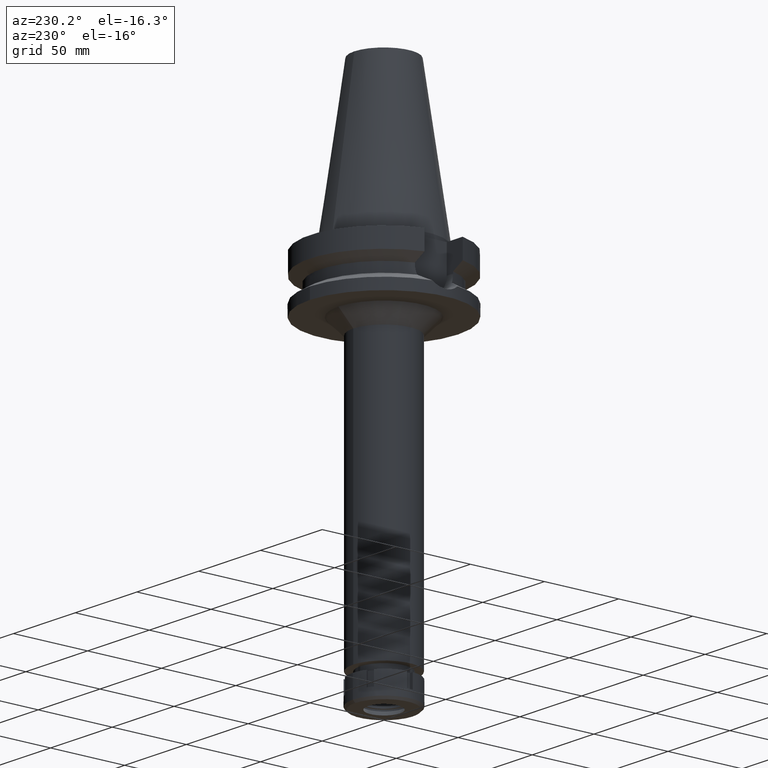
[diagram: clean part render]
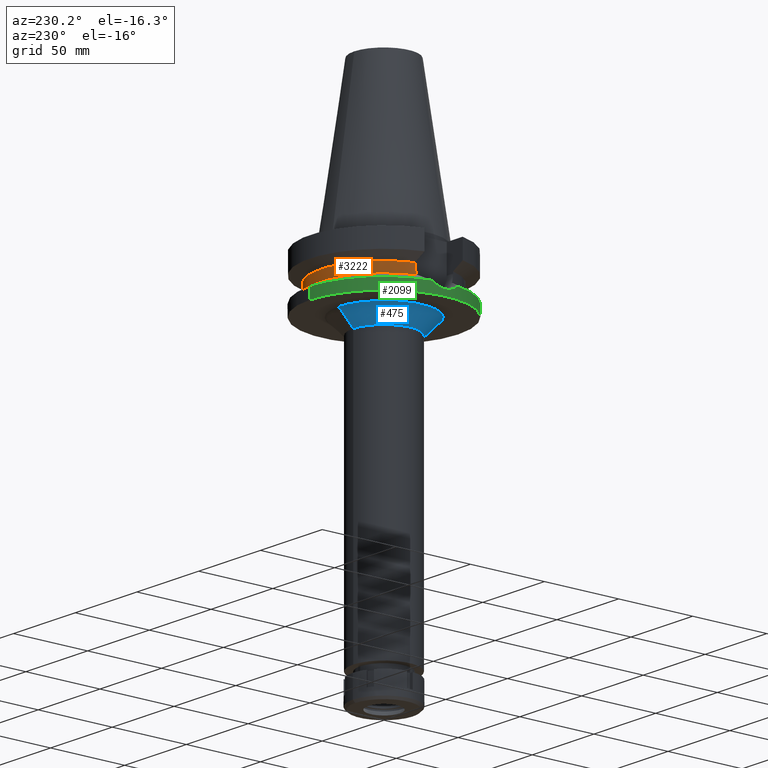
[diagram: same view with three faces highlighted in distinct colors, each labeled with its STEP entity id]
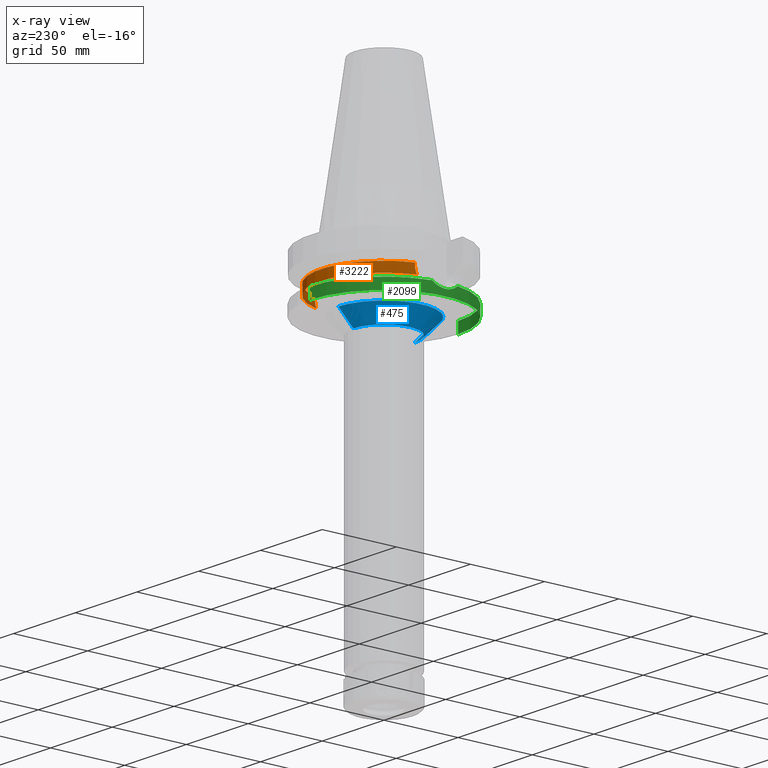
[diagram: x-ray of the same camera — body ghosted, the three highlighted faces saturated]
A machine part, auxiliary view with three faces highlighted in distinct colors.
The next image is the same camera in x-ray (body ghosted, the three faces saturated) — at least one of them is partly hidden behind the body in this view.
Their STEP definitions:

[orange] entity #3222 — the highlighted cylindrical surface (partial cylindrical patch) has radius 42.5 mm, axis along (0, 0, -1).
#44 = CARTESIAN_POINT ( 'NONE',  ( -40.51083297141000372, 12.84999657442999954, -19.99284554354000321 ) ) ;
#49 = CARTESIAN_POINT ( 'NONE',  ( 40.85052569294000335, 11.72538061688000077, -26.40718074535000426 ) ) ;
#210 = CARTESIAN_POINT ( 'NONE',  ( 0.0000000000000000000, 2.681854025452999794E-14, 118.9899999999999949 ) ) ;
#244 = VERTEX_POINT ( 'NONE', #857 ) ;
#247 = DIRECTION ( 'NONE',  ( 0.0000000000000000000, 0.0000000000000000000, -1.000000000000000000 ) ) ;
#391 = DIRECTION ( 'NONE',  ( 9.395523002366738675E-07, -2.962029390682913821E-06, 0.9999999999951717511 ) ) ;
#401 = AXIS2_PLACEMENT_3D ( 'NONE', #2736, #247, #1637 ) ;
#406 = DIRECTION ( 'NONE',  ( 0.0000000000000000000, 0.0000000000000000000, 1.000000000000000000 ) ) ;
#464 = CARTESIAN_POINT ( 'NONE',  ( -40.51083188481999997, 12.85000000000001563, -21.59153398603465845 ) ) ;
#481 = CARTESIAN_POINT ( 'NONE',  ( -40.51083188481999997, 12.84999999999999964, -21.14999999999999858 ) ) ;
#515 = B_SPLINE_CURVE_WITH_KNOTS ( 'NONE', 3,
 ( #49, #1431, #1175, #1397, #1412, #912, #2529, #1156, #878, #1989, #3084, #2290, #1721, #1670 ),
 .UNSPECIFIED., .F., .F.,
 ( 4, 2, 2, 1, 1, 2, 2, 4 ),
 ( 0.0000000000000000000, 0.2500000000000088818, 0.3750000000000124345, 0.4375000000000142109, 0.4687500000000148215, 0.4843750000000149880, 0.5000000000000150990, 1.000000000000000000 ),
 .UNSPECIFIED. ) ;
#531 = CARTESIAN_POINT ( 'NONE',  ( -40.54025132290458799, 12.75732218803889317, -22.70680588306217729 ) ) ;
#539 = EDGE_CURVE ( 'NONE', #2437, #3578, #2130, .T. ) ;
#611 = VERTEX_POINT ( 'NONE', #3116 ) ;
#681 = VECTOR ( 'NONE', #391, 1000.000000000000227 ) ;
#698 = VERTEX_POINT ( 'NONE', #1628 ) ;
#699 = CARTESIAN_POINT ( 'NONE',  ( 40.51083297203000200, 12.84999657246999938, -19.99284555851999912 ) ) ;
#729 = EDGE_LOOP ( 'NONE', ( #1029, #2800, #1897, #1011, #2667, #2448 ) ) ;
#857 = CARTESIAN_POINT ( 'NONE',  ( -40.51083188481999997, 12.84999999999999964, -21.14999999999999858 ) ) ;
#878 = CARTESIAN_POINT ( 'NONE',  ( 40.60613110225496314, 12.54580251688820702, -23.92957962290375917 ) ) ;
#912 = CARTESIAN_POINT ( 'NONE',  ( 40.63719350381693118, 12.44501290232970803, -24.35254947176870388 ) ) ;
#952 = DIRECTION ( 'NONE',  ( 0.0000000000000000000, 1.000000000000000000, 0.0000000000000000000 ) ) ;
#1011 = ORIENTED_EDGE ( 'NONE', *, *, #1415, .F. ) ;
#1029 = ORIENTED_EDGE ( 'NONE', *, *, #1809, .F. ) ;
#1042 = CARTESIAN_POINT ( 'NONE',  ( -40.73816461281640500, 12.11683990849684811, -25.53408746350429226 ) ) ;
#1061 = CARTESIAN_POINT ( 'NONE',  ( -40.51818674434115763, 12.82722305126782913, -22.03685098009094290 ) ) ;
#1076 = CARTESIAN_POINT ( 'NONE',  ( -40.58662141379181776, 12.60879353507807643, -23.62921445736077075 ) ) ;
#1156 = CARTESIAN_POINT ( 'NONE',  ( 40.61156326417292206, 12.52823195063890438, -24.00849632308295867 ) ) ;
#1175 = CARTESIAN_POINT ( 'NONE',  ( 40.74530106207418356, 12.08735929793825115, -25.53452262250650762 ) ) ;
#1314 = CARTESIAN_POINT ( 'NONE',  ( -40.57495706627000231, 12.64634743214176460, -23.43364309116476463 ) ) ;
#1397 = CARTESIAN_POINT ( 'NONE',  ( 40.68244048076137886, 12.29668230719066280, -24.88705132319661217 ) ) ;
#1412 = CARTESIAN_POINT ( 'NONE',  ( 40.66327116386116103, 12.35978815021476862, -24.67233075035922951 ) ) ;
#1415 = EDGE_CURVE ( 'NONE', #2437, #698, #515, .T. ) ;
#1431 = CARTESIAN_POINT ( 'NONE',  ( 40.79434495709897845, 11.92111094478741684, -25.97063258310483747 ) ) ;
#1440 = AXIS2_PLACEMENT_3D ( 'NONE', #1466, #406, #952 ) ;
#1466 = CARTESIAN_POINT ( 'NONE',  ( 0.0000000000000000000, 0.0000000000000000000, -26.40718074535000426 ) ) ;
#1474 = CARTESIAN_POINT ( 'NONE',  ( -40.85052569294000335, 11.72538061688000077, -26.40718074535000426 ) ) ;
#1528 = EDGE_CURVE ( 'NONE', #698, #3271, #2366, .T. ) ;
#1628 = CARTESIAN_POINT ( 'NONE',  ( 40.51083188481999997, 12.84999999999999964, -21.14999999999999858 ) ) ;
#1637 = DIRECTION ( 'NONE',  ( -0.9531960443486575674, 0.3023529411764863672, 0.0000000000000000000 ) ) ;
#1648 = CARTESIAN_POINT ( 'NONE',  ( -40.85052569294000335, 11.72538061688000077, -26.40718074535000426 ) ) ;
#1670 = CARTESIAN_POINT ( 'NONE',  ( 40.51083188481999997, 12.84999999999999964, -21.14999999999999858 ) ) ;
#1721 = CARTESIAN_POINT ( 'NONE',  ( 40.51083188482000708, 12.84999999999999964, -22.03306357542801308 ) ) ;
#1723 = EDGE_CURVE ( 'NONE', #244, #3578, #1857, .T. ) ;
#1809 = EDGE_CURVE ( 'NONE', #611, #244, #2544, .T. ) ;
#1829 = FACE_OUTER_BOUND ( 'NONE', #729, .T. ) ;
#1857 = B_SPLINE_CURVE_WITH_KNOTS ( 'NONE', 3,
 ( #481, #464, #1061, #531, #3551, #2169, #1314, #1076, #2417, #2727, #3212, #3518, #1042, #1648 ),
 .UNSPECIFIED., .F., .F.,
 ( 4, 2, 2, 1, 1, 2, 2, 4 ),
 ( 0.0000000000000000000, 0.2499999999999834022, 0.3749999999999751310, 0.4374999999999700795, 0.4687499999999685252, 0.4843749999999687472, 0.4999999999999689138, 1.000000000000000000 ),
 .UNSPECIFIED. ) ;
#1897 = ORIENTED_EDGE ( 'NONE', *, *, #1528, .F. ) ;
#1989 = CARTESIAN_POINT ( 'NONE',  ( 40.60256541754520043, 12.55733046574997580, -23.87702681445704656 ) ) ;
#2101 = CARTESIAN_POINT ( 'NONE',  ( 40.51083188481999997, 12.84999999999999964, -21.14999999999999858 ) ) ;
#2130 = CIRCLE ( 'NONE', #1440, 42.50000000000000000 ) ;
#2154 = DIRECTION ( 'NONE',  ( 0.0000000000000000000, 0.0000000000000000000, -1.000000000000000000 ) ) ;
#2169 = CARTESIAN_POINT ( 'NONE',  ( -40.56599333122861140, 12.67510265658731150, -23.26591310791587830 ) ) ;
#2253 = DIRECTION ( 'NONE',  ( 9.390170942255792672E-07, 2.960342106127936188E-06, -0.9999999999951774132 ) ) ;
#2290 = CARTESIAN_POINT ( 'NONE',  ( 40.54024904577624966, 12.75863252666559511, -22.93145020863451577 ) ) ;
#2366 = LINE ( 'NONE', #2101, #681 ) ;
#2417 = CARTESIAN_POINT ( 'NONE',  ( -40.59187898915261883, 12.59183755229984136, -23.71299428912182705 ) ) ;
#2437 = VERTEX_POINT ( 'NONE', #3185 ) ;
#2448 = ORIENTED_EDGE ( 'NONE', *, *, #1723, .F. ) ;
#2529 = CARTESIAN_POINT ( 'NONE',  ( 40.62482375262136003, 12.48526717845384759, -24.19323260104153661 ) ) ;
#2541 = VECTOR ( 'NONE', #2253, 999.9999999999998863 ) ;
#2544 = LINE ( 'NONE', #44, #2541 ) ;
#2554 = AXIS2_PLACEMENT_3D ( 'NONE', #210, #2154, #3490 ) ;
#2662 = CYLINDRICAL_SURFACE ( 'NONE', #2554, 42.50000000000000000 ) ;
#2667 = ORIENTED_EDGE ( 'NONE', *, *, #539, .T. ) ;
#2727 = CARTESIAN_POINT ( 'NONE',  ( -40.59544149923318201, 12.58034180439843830, -23.76883805419211271 ) ) ;
#2736 = CARTESIAN_POINT ( 'NONE',  ( 0.0000000000000000000, 1.006319759053999930E-14, -19.99281925464999787 ) ) ;
#2792 = EDGE_CURVE ( 'NONE', #611, #3271, #3234, .T. ) ;
#2800 = ORIENTED_EDGE ( 'NONE', *, *, #2792, .T. ) ;
#3084 = CARTESIAN_POINT ( 'NONE',  ( 40.60092194024851153, 12.56264142401920658, -23.85247195708983270 ) ) ;
#3116 = CARTESIAN_POINT ( 'NONE',  ( -40.51083188481999997, 12.84999999999999964, -19.99281925464999787 ) ) ;
#3185 = CARTESIAN_POINT ( 'NONE',  ( 40.85052569294000335, 11.72538061688000077, -26.40718074535000426 ) ) ;
#3212 = CARTESIAN_POINT ( 'NONE',  ( -40.59736324337207236, 12.57413702265193045, -23.79845171695418671 ) ) ;
#3222 = ADVANCED_FACE ( 'NONE', ( #1829 ), #2662, .T. ) ;
#3234 = CIRCLE ( 'NONE', #401, 42.50000000000002132 ) ;
#3271 = VERTEX_POINT ( 'NONE', #699 ) ;
#3490 = DIRECTION ( 'NONE',  ( 0.0000000000000000000, -1.000000000000000000, 0.0000000000000000000 ) ) ;
#3518 = CARTESIAN_POINT ( 'NONE',  ( -40.65435278152766330, 12.39003776474287655, -24.66355465682169168 ) ) ;
#3551 = CARTESIAN_POINT ( 'NONE',  ( -40.54944489730601731, 12.72806972027243688, -22.93045043092751456 ) ) ;
#3578 = VERTEX_POINT ( 'NONE', #1474 ) ;

[blue] entity #475 — the highlighted conical surface has half-angle 45 deg.
#390 = CIRCLE ( 'NONE', #2813, 30.75000000000000000 ) ;
#434 = CARTESIAN_POINT ( 'NONE',  ( 0.0000000000000000000, -30.75000000000000000, -38.00000000000000000 ) ) ;
#467 = ORIENTED_EDGE ( 'NONE', *, *, #3451, .T. ) ;
#475 = ADVANCED_FACE ( 'NONE', ( #3318 ), #3241, .T. ) ;
#490 = DIRECTION ( 'NONE',  ( 0.0000000000000000000, -1.000000000000000000, 0.0000000000000000000 ) ) ;
#735 = CARTESIAN_POINT ( 'NONE',  ( 0.0000000000000000000, 20.75000000000000000, -48.00000000000000000 ) ) ;
#743 = CARTESIAN_POINT ( 'NONE',  ( 0.0000000000000000000, 30.75000000000000000, -38.00000000000000000 ) ) ;
#753 = CARTESIAN_POINT ( 'NONE',  ( 0.0000000000000000000, 0.0000000000000000000, -48.00000000000000000 ) ) ;
#853 = DIRECTION ( 'NONE',  ( 0.0000000000000000000, 0.0000000000000000000, 1.000000000000000000 ) ) ;
#929 = CARTESIAN_POINT ( 'NONE',  ( 0.0000000000000000000, -30.75000000000000000, -38.00000000000000000 ) ) ;
#962 = EDGE_CURVE ( 'NONE', #2084, #1680, #390, .T. ) ;
#976 = CARTESIAN_POINT ( 'NONE',  ( 0.0000000000000000000, 0.0000000000000000000, -38.00000000000000000 ) ) ;
#1252 = VERTEX_POINT ( 'NONE', #735 ) ;
#1344 = DIRECTION ( 'NONE',  ( 0.0000000000000000000, 0.0000000000000000000, -1.000000000000000000 ) ) ;
#1396 = AXIS2_PLACEMENT_3D ( 'NONE', #3044, #853, #1965 ) ;
#1562 = DIRECTION ( 'NONE',  ( 0.0000000000000000000, 0.7071067811865969777, -0.7071067811864980568 ) ) ;
#1638 = DIRECTION ( 'NONE',  ( 0.0000000000000000000, -0.7071067811865474617, -0.7071067811865474617 ) ) ;
#1680 = VERTEX_POINT ( 'NONE', #743 ) ;
#1965 = DIRECTION ( 'NONE',  ( 0.0000000000000000000, 1.000000000000000000, 0.0000000000000000000 ) ) ;
#1993 = LINE ( 'NONE', #2211, #2847 ) ;
#2084 = VERTEX_POINT ( 'NONE', #929 ) ;
#2211 = CARTESIAN_POINT ( 'NONE',  ( 0.0000000000000000000, 30.75000000000000000, -38.00000000000000000 ) ) ;
#2323 = VECTOR ( 'NONE', #1562, 1000.000000000000000 ) ;
#2373 = DIRECTION ( 'NONE',  ( 0.0000000000000000000, -1.000000000000000000, 0.0000000000000000000 ) ) ;
#2476 = EDGE_LOOP ( 'NONE', ( #3186, #2484, #3571, #467 ) ) ;
#2482 = CIRCLE ( 'NONE', #2719, 20.75000000000000000 ) ;
#2484 = ORIENTED_EDGE ( 'NONE', *, *, #3285, .F. ) ;
#2691 = EDGE_CURVE ( 'NONE', #3325, #1252, #2482, .T. ) ;
#2719 = AXIS2_PLACEMENT_3D ( 'NONE', #753, #1344, #490 ) ;
#2813 = AXIS2_PLACEMENT_3D ( 'NONE', #976, #3493, #2373 ) ;
#2847 = VECTOR ( 'NONE', #1638, 1000.000000000000114 ) ;
#2911 = LINE ( 'NONE', #434, #2323 ) ;
#3044 = CARTESIAN_POINT ( 'NONE',  ( 0.0000000000000000000, 0.0000000000000000000, -43.00000000000000000 ) ) ;
#3186 = ORIENTED_EDGE ( 'NONE', *, *, #2691, .F. ) ;
#3241 = CONICAL_SURFACE ( 'NONE', #1396, 25.75000000000000000, 0.7853981633972997312 ) ;
#3285 = EDGE_CURVE ( 'NONE', #2084, #3325, #2911, .T. ) ;
#3318 = FACE_OUTER_BOUND ( 'NONE', #2476, .T. ) ;
#3325 = VERTEX_POINT ( 'NONE', #3557 ) ;
#3451 = EDGE_CURVE ( 'NONE', #1680, #1252, #1993, .T. ) ;
#3493 = DIRECTION ( 'NONE',  ( 0.0000000000000000000, 0.0000000000000000000, -1.000000000000000000 ) ) ;
#3557 = CARTESIAN_POINT ( 'NONE',  ( 0.0000000000000000000, -20.75000000000000000, -48.00000000000000000 ) ) ;
#3571 = ORIENTED_EDGE ( 'NONE', *, *, #962, .T. ) ;

[green] entity #2099 — the highlighted cylindrical surface (partial cylindrical patch) has radius 50 mm, axis along (0, 0, -1).
#26 = CARTESIAN_POINT ( 'NONE',  ( -49.47545955089682934, 7.223761302982179444, -31.77884738309019852 ) ) ;
#28 = CIRCLE ( 'NONE', #2132, 50.00000000000000000 ) ;
#45 = CARTESIAN_POINT ( 'NONE',  ( -49.45237339636481977, 7.380120931238487891, -31.67121146399531284 ) ) ;
#85 = EDGE_CURVE ( 'NONE', #595, #831, #896, .T. ) ;
#102 = CARTESIAN_POINT ( 'NONE',  ( -49.84651528413354526, -3.920985205604205603, -33.39005319609416489 ) ) ;
#114 = AXIS2_PLACEMENT_3D ( 'NONE', #2424, #2390, #718 ) ;
#139 = CARTESIAN_POINT ( 'NONE',  ( -49.86781402482434089, -3.634532326589874796, -33.47688292878657990 ) ) ;
#163 = CARTESIAN_POINT ( 'NONE',  ( -49.75843120213882997, -4.920344587899156963, -33.02605928572888416 ) ) ;
#196 = VERTEX_POINT ( 'NONE', #1196 ) ;
#329 = CARTESIAN_POINT ( 'NONE',  ( -49.32355172933074527, 8.204543288763300524, -31.05100676833593809 ) ) ;
#343 = VERTEX_POINT ( 'NONE', #2332 ) ;
#369 = CARTESIAN_POINT ( 'NONE',  ( -49.60518484971358077, 6.281269808174585911, -32.36791778043482992 ) ) ;
#378 = DIRECTION ( 'NONE',  ( 0.0000000000000000000, -1.000000000000000000, 0.0000000000000000000 ) ) ;
#386 = CARTESIAN_POINT ( 'NONE',  ( -49.81882249592617740, -4.254026027355021888, -33.27615225248356268 ) ) ;
#404 = CYLINDRICAL_SURFACE ( 'NONE', #796, 50.00000000000000000 ) ;
#441 = CARTESIAN_POINT ( 'NONE',  ( -49.92905808746478158, -2.678002761925775133, -33.72384118168554323 ) ) ;
#580 = CARTESIAN_POINT ( 'NONE',  ( -49.54076884813924408, 6.760914060484202182, -32.07774335871258842 ) ) ;
#589 = CARTESIAN_POINT ( 'NONE',  ( 0.0000000000000000000, 2.681854025452999794E-14, -38.00000000000000000 ) ) ;
#595 = VERTEX_POINT ( 'NONE', #910 ) ;
#634 = CARTESIAN_POINT ( 'NONE',  ( -49.78933990107011454, 4.584940122016748276, -33.15420559215428398 ) ) ;
#643 = ORIENTED_EDGE ( 'NONE', *, *, #3436, .F. ) ;
#651 = CARTESIAN_POINT ( 'NONE',  ( 0.0000000000000000000, 0.0000000000000000000, -30.73730776426999967 ) ) ;
#674 = CARTESIAN_POINT ( 'NONE',  ( -49.66469752105872004, -5.782708943263154211, -32.62693119946450793 ) ) ;
#691 = CARTESIAN_POINT ( 'NONE',  ( -49.55942031348192955, -6.622851153853404504, -32.16184060116423638 ) ) ;
#711 = CARTESIAN_POINT ( 'NONE',  ( -49.99923022601736022, 0.2971183250704268475, -33.99716155231013914 ) ) ;
#718 = DIRECTION ( 'NONE',  ( -0.9852500129747439050, 0.1711210446826074982, 0.0000000000000000000 ) ) ;
#752 = VECTOR ( 'NONE', #2192, 1000.000000000000000 ) ;
#796 = AXIS2_PLACEMENT_3D ( 'NONE', #1514, #2342, #2397 ) ;
#809 = AXIS2_PLACEMENT_3D ( 'NONE', #589, #861, #837 ) ;
#831 = VERTEX_POINT ( 'NONE', #2654 ) ;
#834 = CARTESIAN_POINT ( 'NONE',  ( -49.52349772106806114, 6.886548028525830922, -31.99945688093084328 ) ) ;
#837 = DIRECTION ( 'NONE',  ( 0.0000000000000000000, 1.000000000000000000, 0.0000000000000000000 ) ) ;
#852 = CARTESIAN_POINT ( 'NONE',  ( -49.91449747578779039, 3.011291992980338783, -33.66643545824761929 ) ) ;
#861 = DIRECTION ( 'NONE',  ( 0.0000000000000000000, 0.0000000000000000000, 1.000000000000000000 ) ) ;
#873 = CARTESIAN_POINT ( 'NONE',  ( -49.99656062081957231, 0.6257140599287791538, -33.98717225110016216 ) ) ;
#896 = B_SPLINE_CURVE_WITH_KNOTS ( 'NONE', 3,
 ( #3316, #329, #2545, #45, #26, #2236, #834, #580, #3354, #1153, #2001, #2851, #1172, #369, #2022, #2273, #1704, #3389, #3375, #909, #3115, #634, #1943, #1685, #2777, #852, #1964, #3061, #2254, #873, #711, #2304, #1244, #2062, #3210, #1803, #2078, #441, #1820, #139, #102, #386, #2901, #2633, #2595, #951, #2919, #163, #3154, #674, #1785, #2362, #2095, #3172, #1555, #691, #3464, #2653, #1279, #3481, #1836, #2940 ),
 .UNSPECIFIED., .F., .F.,
 ( 4, 2, 2, 1, 1, 1, 1, 2, 2, 2, 2, 1, 1, 1, 2, 2, 2, 2, 1, 1, 1, 2, 2, 2, 2, 1, 1, 1, 1, 2, 2, 2, 2, 1, 1, 1, 1, 2, 2, 4 ),
 ( 0.0000000000000000000, 0.06249999999999676648, 0.09374999999999510114, 0.1093749999999945044, 0.1171874999999944073, 0.1210937499999946293, 0.1230468749999949901, 0.1240234374999951150, 0.1249999999999952260, 0.1874999999999815425, 0.2187499999999744371, 0.2343749999999708289, 0.2421874999999691080, 0.2460937499999682754, 0.2480468749999681644, 0.2499999999999680256, 0.3749999999999700240, 0.4374999999999710787, 0.4687499999999716893, 0.4843749999999720224, 0.4921874999999721334, 0.4960937499999722444, 0.4999999999999722999, 0.6249999999999749090, 0.6874999999999761302, 0.7187499999999767963, 0.7343749999999772404, 0.7421874999999775735, 0.7460937499999777955, 0.7480468749999780176, 0.7499999999999782396, 0.8124999999999835687, 0.8437499999999862332, 0.8593749999999874545, 0.8671874999999882316, 0.8710937499999884537, 0.8730468749999883427, 0.8740234374999885647, 0.8749999999999886757, 1.000000000000000000 ),
 .UNSPECIFIED. ) ;
#909 = CARTESIAN_POINT ( 'NONE',  ( -49.77949971994086553, 4.690819386567020466, -33.11337491307152447 ) ) ;
#910 = CARTESIAN_POINT ( 'NONE',  ( -49.26250064874000145, 8.556052234130000045, -30.73730776426999967 ) ) ;
#951 = CARTESIAN_POINT ( 'NONE',  ( -49.79141052113541832, -4.562360029687752672, -33.16280697025754876 ) ) ;
#1083 = CARTESIAN_POINT ( 'NONE',  ( 0.0000000000000000000, -50.00000000000000000, -30.73730776426999967 ) ) ;
#1103 = ORIENTED_EDGE ( 'NONE', *, *, #85, .F. ) ;
#1136 = EDGE_CURVE ( 'NONE', #196, #831, #28, .T. ) ;
#1153 = CARTESIAN_POINT ( 'NONE',  ( -49.55329500996323588, 6.668440173719891284, -32.13428823801960021 ) ) ;
#1172 = CARTESIAN_POINT ( 'NONE',  ( -49.55664221925680835, 6.643527527945131794, -32.14936745231709381 ) ) ;
#1196 = CARTESIAN_POINT ( 'NONE',  ( 1.598721155459999804E-14, -50.00000000000000000, -30.73730776426999967 ) ) ;
#1198 = LINE ( 'NONE', #2011, #1582 ) ;
#1224 = ORIENTED_EDGE ( 'NONE', *, *, #3582, .T. ) ;
#1244 = CARTESIAN_POINT ( 'NONE',  ( -49.99996105250686895, 0.06346433226145616058, -33.99986443132587510 ) ) ;
#1279 = CARTESIAN_POINT ( 'NONE',  ( -49.55481251794309827, -6.657217598714895601, -32.14108634208233184 ) ) ;
#1475 = DIRECTION ( 'NONE',  ( 0.0000000000000000000, 0.0000000000000000000, -1.000000000000000000 ) ) ;
#1514 = CARTESIAN_POINT ( 'NONE',  ( 0.0000000000000000000, 2.681854025452999794E-14, 118.9899999999999949 ) ) ;
#1547 = ORIENTED_EDGE ( 'NONE', *, *, #2930, .T. ) ;
#1555 = CARTESIAN_POINT ( 'NONE',  ( -49.56457604549012075, -6.584208491084636350, -32.18502865148518310 ) ) ;
#1582 = VECTOR ( 'NONE', #2820, 1000.000000000000000 ) ;
#1642 = ORIENTED_EDGE ( 'NONE', *, *, #3177, .T. ) ;
#1685 = CARTESIAN_POINT ( 'NONE',  ( -49.79212822419913209, 4.554578003237975459, -33.16575966831541677 ) ) ;
#1704 = CARTESIAN_POINT ( 'NONE',  ( -49.72628088389677004, 5.226839791954831504, -32.89043312866968449 ) ) ;
#1785 = CARTESIAN_POINT ( 'NONE',  ( -49.64406890215278878, -5.957399478674505922, -32.53735197257002199 ) ) ;
#1803 = CARTESIAN_POINT ( 'NONE',  ( -49.99953693454757087, -0.7730648210277409893, -33.99815403265063196 ) ) ;
#1820 = CARTESIAN_POINT ( 'NONE',  ( -49.90716092631850387, -3.061060487963495724, -33.63638781158010005 ) ) ;
#1836 = CARTESIAN_POINT ( 'NONE',  ( -49.38319579439034612, -7.861135404685493100, -31.35747609904124289 ) ) ;
#1943 = CARTESIAN_POINT ( 'NONE',  ( -49.79128222917576352, 4.563809742495982924, -33.16225492800936081 ) ) ;
#1964 = CARTESIAN_POINT ( 'NONE',  ( -49.96619217278752956, 1.861043627192394689, -33.87048154078897255 ) ) ;
#1973 = CIRCLE ( 'NONE', #809, 50.00000000000000000 ) ;
#2001 = CARTESIAN_POINT ( 'NONE',  ( -49.55505394854672119, 6.655356545368964483, -32.14221338774419934 ) ) ;
#2011 = CARTESIAN_POINT ( 'NONE',  ( 0.0000000000000000000, 50.00000000000000000, -30.73730776426999967 ) ) ;
#2022 = CARTESIAN_POINT ( 'NONE',  ( -49.64873468416833191, 5.926093019670041429, -32.55855127975951291 ) ) ;
#2062 = CARTESIAN_POINT ( 'NONE',  ( -50.00000154515157647, 0.01683302876356103372, -34.00001012739157602 ) ) ;
#2078 = CARTESIAN_POINT ( 'NONE',  ( -49.98174725135408636, -1.532214871315630500, -33.93192243008281395 ) ) ;
#2095 = CARTESIAN_POINT ( 'NONE',  ( -49.59491009735830147, -6.352622271095648365, -32.32071165171672078 ) ) ;
#2099 = ADVANCED_FACE ( 'NONE', ( #2882 ), #404, .T. ) ;
#2132 = AXIS2_PLACEMENT_3D ( 'NONE', #651, #1475, #378 ) ;
#2192 = DIRECTION ( 'NONE',  ( 0.0000000000000000000, -2.250196262218999978E-14, -1.000000000000000000 ) ) ;
#2236 = CARTESIAN_POINT ( 'NONE',  ( -49.50785696696583216, 6.997564410808575275, -31.92797514983484319 ) ) ;
#2254 = CARTESIAN_POINT ( 'NONE',  ( -49.99181805520294120, 0.9093549980519093356, -33.96919875734368333 ) ) ;
#2273 = CARTESIAN_POINT ( 'NONE',  ( -49.70769045639643480, 5.400735401571417960, -32.81157525025605537 ) ) ;
#2304 = CARTESIAN_POINT ( 'NONE',  ( -49.99984918161081282, 0.1334601369056567233, -33.99945535958667620 ) ) ;
#2332 = CARTESIAN_POINT ( 'NONE',  ( 0.0000000000000000000, -50.00000000000000000, -38.00000000000000000 ) ) ;
#2342 = DIRECTION ( 'NONE',  ( 0.0000000000000000000, 0.0000000000000000000, -1.000000000000000000 ) ) ;
#2362 = CARTESIAN_POINT ( 'NONE',  ( -49.61155773821895565, -6.220675324061929246, -32.39436178209032136 ) ) ;
#2390 = DIRECTION ( 'NONE',  ( 0.0000000000000000000, 0.0000000000000000000, -1.000000000000000000 ) ) ;
#2397 = DIRECTION ( 'NONE',  ( 0.0000000000000000000, -1.000000000000000000, 0.0000000000000000000 ) ) ;
#2424 = CARTESIAN_POINT ( 'NONE',  ( 0.0000000000000000000, 0.0000000000000000000, -30.73730776426999967 ) ) ;
#2447 = CARTESIAN_POINT ( 'NONE',  ( 0.0000000000000000000, 50.00000000000000000, -38.00000000000000000 ) ) ;
#2545 = CARTESIAN_POINT ( 'NONE',  ( -49.37865130131078217, 7.863348513944311335, -31.32096616194801442 ) ) ;
#2595 = CARTESIAN_POINT ( 'NONE',  ( -49.79357480857532892, -4.538675684575517622, -33.17177538366956924 ) ) ;
#2625 = VERTEX_POINT ( 'NONE', #3244 ) ;
#2628 = VERTEX_POINT ( 'NONE', #2447 ) ;
#2633 = CARTESIAN_POINT ( 'NONE',  ( -49.79680854215750685, -4.503141133103672367, -33.18517100301967560 ) ) ;
#2653 = CARTESIAN_POINT ( 'NONE',  ( -49.55572029098784270, -6.650459805613031072, -32.14517739720998435 ) ) ;
#2654 = CARTESIAN_POINT ( 'NONE',  ( -49.26250064874000145, -8.556052234130000045, -30.73730776426999967 ) ) ;
#2777 = CARTESIAN_POINT ( 'NONE',  ( -49.86258131270364657, 3.782611438752795596, -33.45750188033137107 ) ) ;
#2820 = DIRECTION ( 'NONE',  ( 0.0000000000000000000, 2.152361642122000014E-14, -1.000000000000000000 ) ) ;
#2851 = CARTESIAN_POINT ( 'NONE',  ( -49.55622366825896563, 6.646646299357509946, -32.14748238820708792 ) ) ;
#2882 = FACE_OUTER_BOUND ( 'NONE', #2927, .T. ) ;
#2901 = CARTESIAN_POINT ( 'NONE',  ( -49.80426503747212053, -4.420172306704190923, -33.21602876915958547 ) ) ;
#2919 = CARTESIAN_POINT ( 'NONE',  ( -49.79019610905466919, -4.575589141235021806, -33.15777286110441935 ) ) ;
#2927 = EDGE_LOOP ( 'NONE', ( #1642, #1224, #1547, #643, #3025, #1103 ) ) ;
#2930 = EDGE_CURVE ( 'NONE', #2628, #343, #1973, .T. ) ;
#2940 = CARTESIAN_POINT ( 'NONE',  ( -49.26250064874000145, -8.556052234130000045, -30.73730776426999967 ) ) ;
#3024 = LINE ( 'NONE', #1083, #752 ) ;
#3025 = ORIENTED_EDGE ( 'NONE', *, *, #1136, .T. ) ;
#3061 = CARTESIAN_POINT ( 'NONE',  ( -49.97906048051634542, 1.478705909390460427, -33.92031957331485614 ) ) ;
#3115 = CARTESIAN_POINT ( 'NONE',  ( -49.78641396949863207, 4.616657847770981427, -33.14207524802799298 ) ) ;
#3154 = CARTESIAN_POINT ( 'NONE',  ( -49.72344690662666977, -5.262320351086370529, -32.87941492323862036 ) ) ;
#3172 = CARTESIAN_POINT ( 'NONE',  ( -49.57480174662351402, -6.506959023240471041, -32.23091076071708017 ) ) ;
#3177 = EDGE_CURVE ( 'NONE', #595, #2625, #3479, .T. ) ;
#3210 = CARTESIAN_POINT ( 'NONE',  ( -50.00000435596023607, -0.008138655442405393417, -34.00001832910925259 ) ) ;
#3244 = CARTESIAN_POINT ( 'NONE',  ( 0.0000000000000000000, 50.00000000000000000, -30.73730776426999967 ) ) ;
#3316 = CARTESIAN_POINT ( 'NONE',  ( -49.26250064874000145, 8.556052234130000045, -30.73730776426999967 ) ) ;
#3354 = CARTESIAN_POINT ( 'NONE',  ( -49.54916030682945660, 6.699096042851259369, -32.11564414447012439 ) ) ;
#3375 = CARTESIAN_POINT ( 'NONE',  ( -49.76532291726141466, 4.839743682892073018, -33.05437493816932459 ) ) ;
#3389 = CARTESIAN_POINT ( 'NONE',  ( -49.75257428028378115, 4.968379225556079248, -33.00101214816459816 ) ) ;
#3436 = EDGE_CURVE ( 'NONE', #196, #343, #3024, .T. ) ;
#3464 = CARTESIAN_POINT ( 'NONE',  ( -49.55720152516950350, -6.639415883438234189, -32.15184976942240525 ) ) ;
#3479 = CIRCLE ( 'NONE', #114, 50.00000000000000000 ) ;
#3481 = CARTESIAN_POINT ( 'NONE',  ( -49.48044090942567408, -7.210275245253477294, -31.80580850925815994 ) ) ;
#3582 = EDGE_CURVE ( 'NONE', #2625, #2628, #1198, .T. ) ;